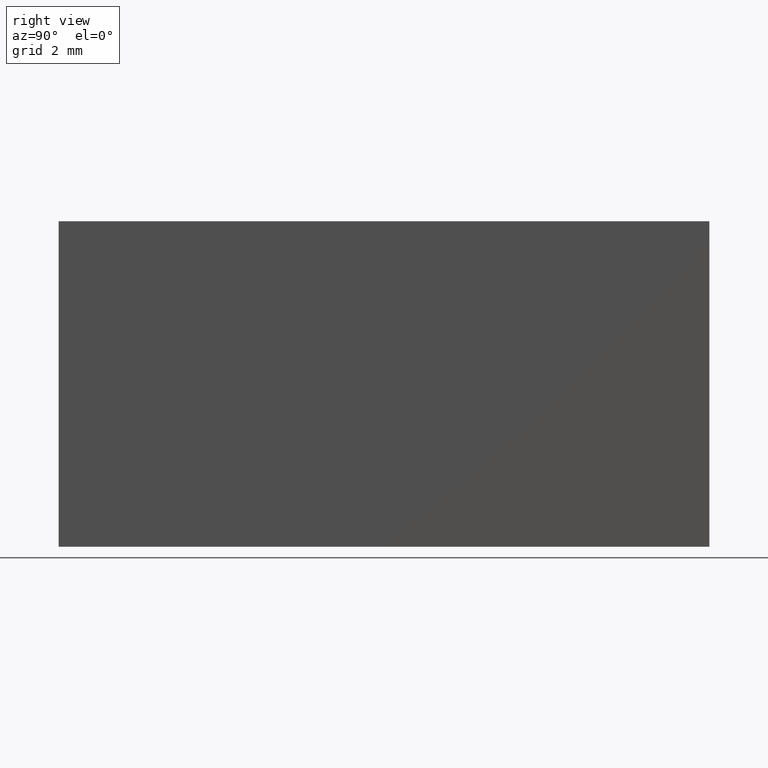
[diagram: clean part render]
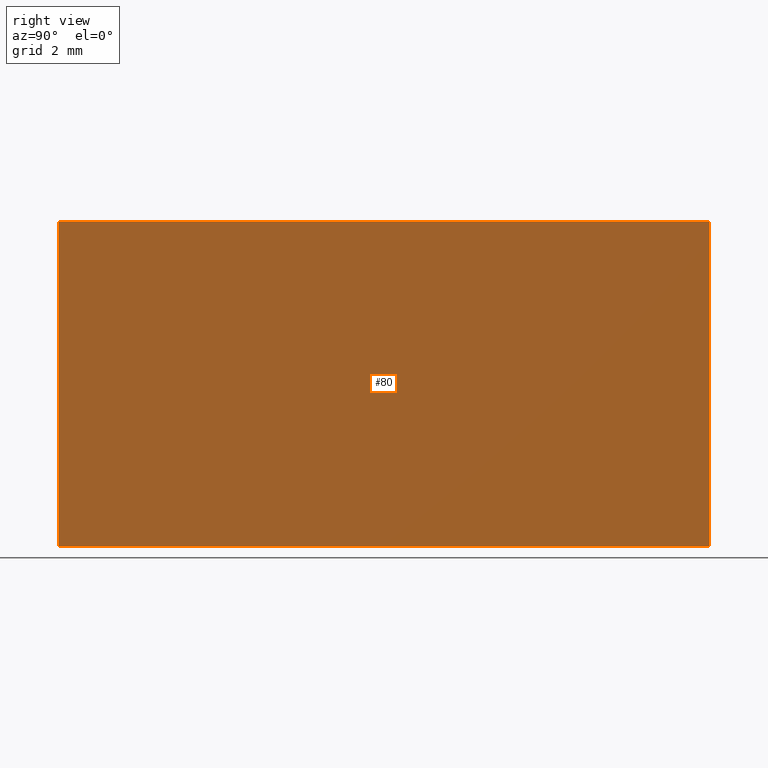
[diagram: same view with one face highlighted and labeled with its STEP entity id]
A machine part, right view. The second image highlights one B-rep face of the part: STEP entity #80.
In plain terms, the highlighted planar face has unit normal (-1, 0, 0).
Its self-contained STEP definition (entity closure, byte-faithful):
#8 = LINE ( 'NONE', #25, #126 ) ;
#12 = EDGE_LOOP ( 'NONE', ( #178, #180, #164, #161 ) ) ;
#23 = VERTEX_POINT ( 'NONE', #82 ) ;
#24 = VERTEX_POINT ( 'NONE', #160 ) ;
#25 = CARTESIAN_POINT ( 'NONE',  ( 0.0000000000000000000, 0.0000000000000000000, 0.0000000000000000000 ) ) ;
#30 = EDGE_CURVE ( 'NONE', #23, #24, #72, .T. ) ;
#35 = VERTEX_POINT ( 'NONE', #117 ) ;
#41 = FACE_OUTER_BOUND ( 'NONE', #12, .T. ) ;
#56 = CARTESIAN_POINT ( 'NONE',  ( 0.0000000000000000000, 0.0000000000000000000, 0.0000000000000000000 ) ) ;
#66 = VERTEX_POINT ( 'NONE', #56 ) ;
#70 = PLANE ( 'NONE',  #195 ) ;
#72 = LINE ( 'NONE', #147, #109 ) ;
#79 = EDGE_CURVE ( 'NONE', #35, #66, #8, .T. ) ;
#80 = ADVANCED_FACE ( 'NONE', ( #41 ), #70, .F. ) ;
#82 = CARTESIAN_POINT ( 'NONE',  ( 6.123233995736766300E-016, 20.00000000000000000, 10.00000000000000000 ) ) ;
#83 = DIRECTION ( 'NONE',  ( -6.123233995736766000E-017, -0.0000000000000000000, -1.000000000000000000 ) ) ;
#89 = CARTESIAN_POINT ( 'NONE',  ( 0.0000000000000000000, 20.00000000000000000, 0.0000000000000000000 ) ) ;
#92 = VECTOR ( 'NONE', #121, 1000.000000000000000 ) ;
#102 = CARTESIAN_POINT ( 'NONE',  ( 0.0000000000000000000, 20.00000000000000000, 0.0000000000000000000 ) ) ;
#109 = VECTOR ( 'NONE', #83, 1000.000000000000000 ) ;
#111 = EDGE_CURVE ( 'NONE', #24, #66, #146, .T. ) ;
#117 = CARTESIAN_POINT ( 'NONE',  ( 6.123233995736766300E-016, 0.0000000000000000000, 10.00000000000000000 ) ) ;
#121 = DIRECTION ( 'NONE',  ( -0.0000000000000000000, -1.000000000000000000, -0.0000000000000000000 ) ) ;
#126 = VECTOR ( 'NONE', #140, 1000.000000000000000 ) ;
#130 = DIRECTION ( 'NONE',  ( 6.123233995736766000E-017, 0.0000000000000000000, 1.000000000000000000 ) ) ;
#134 = VECTOR ( 'NONE', #193, 1000.000000000000000 ) ;
#136 = CARTESIAN_POINT ( 'NONE',  ( 6.123233995736766300E-016, 20.00000000000000000, 10.00000000000000000 ) ) ;
#140 = DIRECTION ( 'NONE',  ( -6.123233995736766000E-017, -0.0000000000000000000, -1.000000000000000000 ) ) ;
#142 = LINE ( 'NONE', #136, #134 ) ;
#146 = LINE ( 'NONE', #102, #92 ) ;
#147 = CARTESIAN_POINT ( 'NONE',  ( 0.0000000000000000000, 20.00000000000000000, 0.0000000000000000000 ) ) ;
#160 = CARTESIAN_POINT ( 'NONE',  ( 0.0000000000000000000, 20.00000000000000000, 0.0000000000000000000 ) ) ;
#161 = ORIENTED_EDGE ( 'NONE', *, *, #199, .T. ) ;
#164 = ORIENTED_EDGE ( 'NONE', *, *, #30, .F. ) ;
#178 = ORIENTED_EDGE ( 'NONE', *, *, #79, .T. ) ;
#180 = ORIENTED_EDGE ( 'NONE', *, *, #111, .F. ) ;
#193 = DIRECTION ( 'NONE',  ( -0.0000000000000000000, -1.000000000000000000, -0.0000000000000000000 ) ) ;
#195 = AXIS2_PLACEMENT_3D ( 'NONE', #89, #197, #130 ) ;
#197 = DIRECTION ( 'NONE',  ( -1.000000000000000000, 0.0000000000000000000, 6.123233995736766000E-017 ) ) ;
#199 = EDGE_CURVE ( 'NONE', #23, #35, #142, .T. ) ;